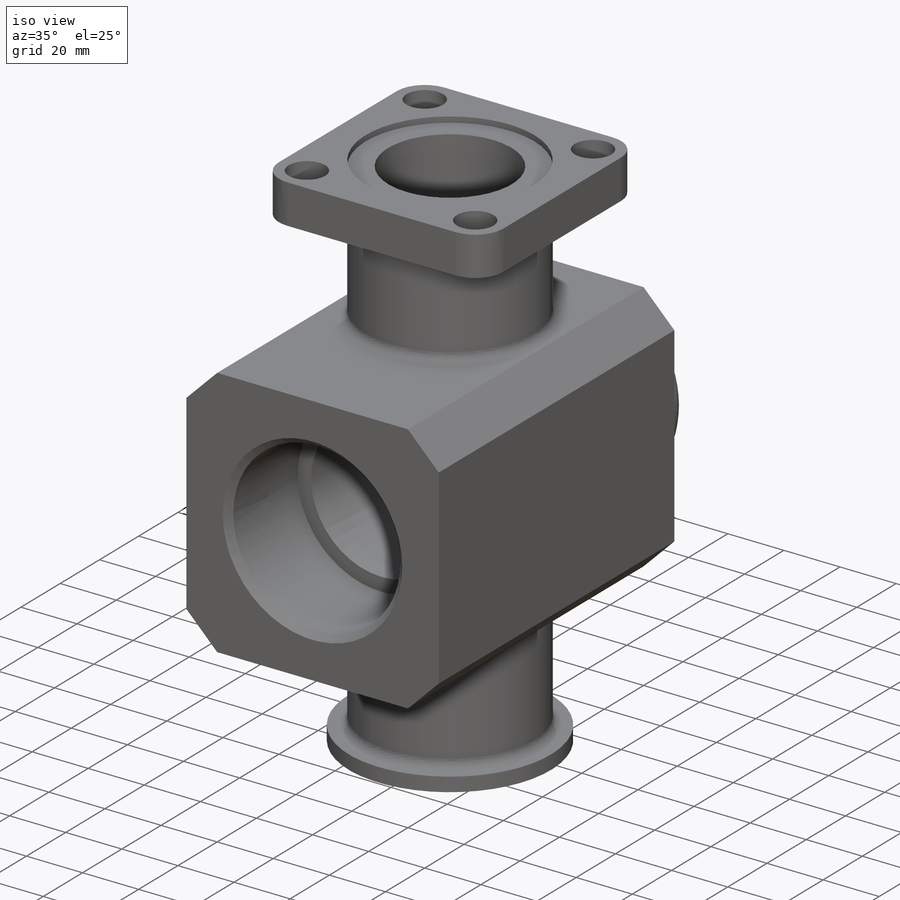
[diagram: iso view]
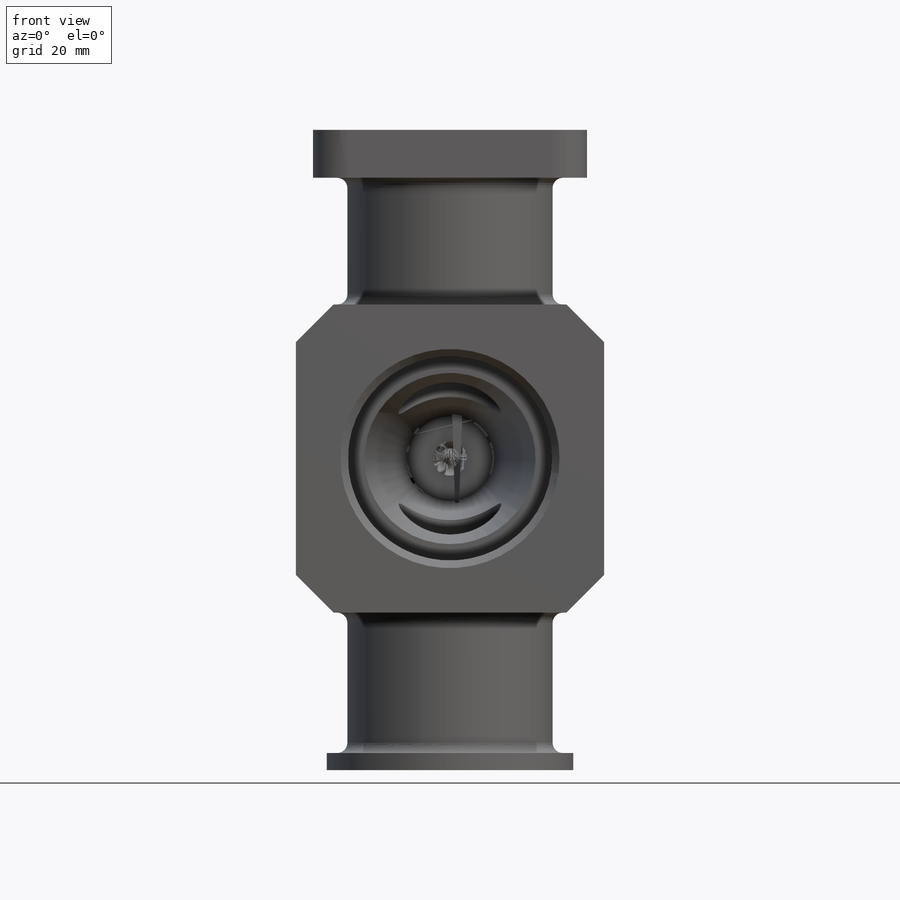
[diagram: front view]
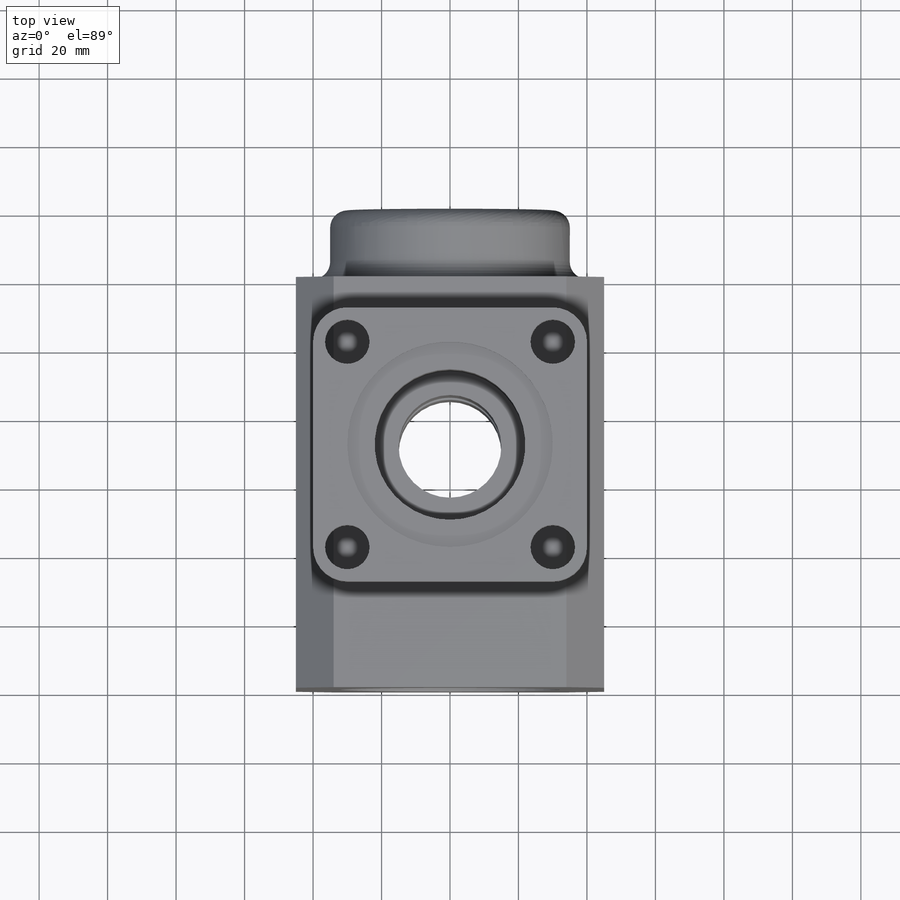
[diagram: top view]
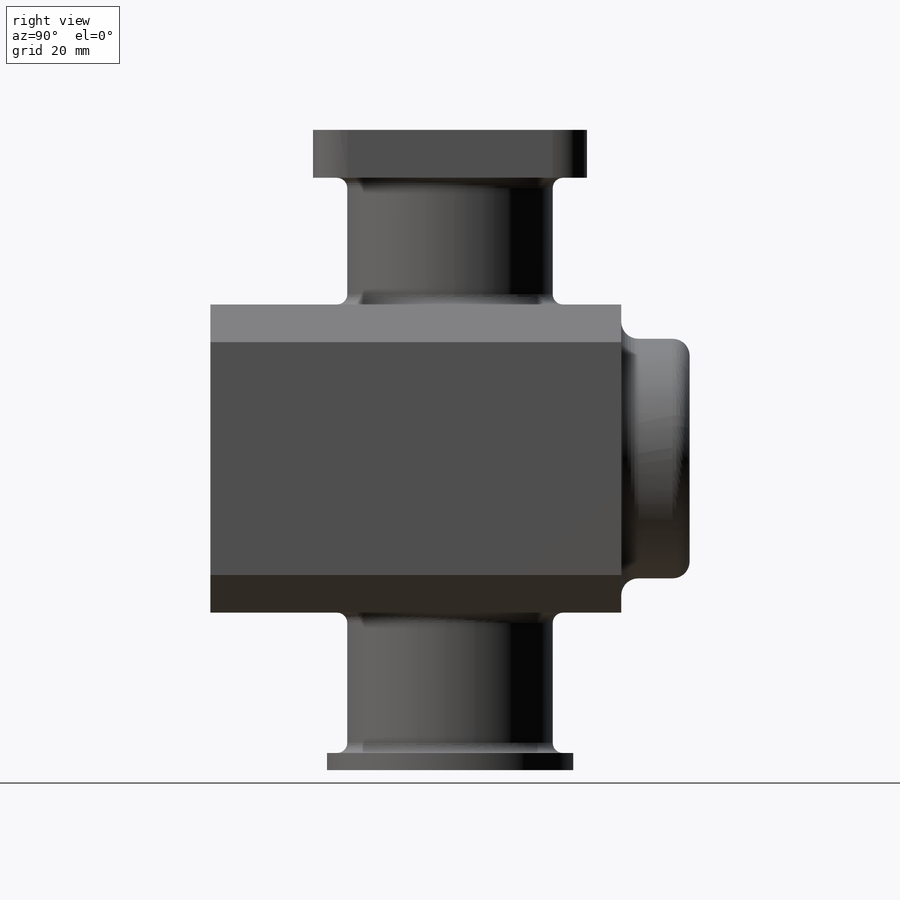
[diagram: right view]
SOLIDWORKS PART (.sldprt)
format: sldprt  version: not decoded by parser v0  size: 675,840 bytes
history: native  units: mm
features: sketch x13, extrude x6, cut_extrude x6, plane x3, fillet x3, chamfer x3, thread x2, material x1, cut_revolve x1 (+9 scaffold rows collapsed)
feature tree (47):
  scaffold x9  (default folders/planes/origin — collapsed)
  material  "Бронза"
  plane  "Спереди"
  plane  "Сверху"
  plane  "Справа"
  sketch  "Эскиз1"  dims[D1=90.0mm]
  extrude  "Бобышка-Вытянуть1"  Depth=120mm
  sketch  "Эскиз9"  dims[D1=70.0mm]
  extrude  "Бобышка-Вытянуть6"  Depth=20mm
  sketch  "Эскиз2"  dims[D1=60.0mm]
  extrude  "Бобышка-Вытянуть2"  Depth=51mm
  sketch  "Эскиз3"  dims[D1=80.0mm]
  extrude  "Бобышка-Вытянуть3"  Depth=14mm
  sketch  "Эскиз4"  dims[D1=60.0mm]
  extrude  "Бобышка-Вытянуть4"  Depth=46mm
  sketch  "Эскиз5"  dims[D1=72.0mm]
  extrude  "Бобышка-Вытянуть5"  Depth=5mm
  sketch  "Эскиз6"  dims[D1=30.0mm]
  cut_extrude  "Вырез-Вытянуть1"  [1 undecoded]
  sketch  "Эскиз7"  dims[D1=44.0mm]
  cut_extrude  "Вырез-Вытянуть2"  Depth=32mm
  sketch  "Эскиз8"  dims[D1=44.704mm]
  cut_extrude  "Вырез-Вытянуть3"  [1 undecoded]
  thread  "Условное изображение резьбы2"  Diameter=28mm  [1 undecoded]
  fillet  "Скругление1"  Radius=10mm
  sketch  "Эскиз10"  dims[D2=13.0mm D1=60.0mm]
  cut_extrude  "Вырез-Вытянуть4"  [1 undecoded]
  chamfer  "Фаска1"  Distance=11mm Angle=45deg
  fillet  "Скругление2"  Radius=5mm
  sketch  "Эскиз11"  dims[D1=59.61mm]
  cut_extrude  "Вырез-Вытянуть5"  [1 undecoded]
  thread  "Условное изображение резьбы1"  Diameter=20mm  [1 undecoded]
  sketch  "Эскиз13"  dims[c1.D1=50.0mm c1.D2=90.0mm c1.D3=90.0mm c2.D3=8.0deg]
  cut_revolve  "Вырез-Повернуть1"  Angle=360deg
  chamfer  "Фаска2"  Distance=2.195mm Angle=45deg
  sketch  "Эскиз14"  dims[D1=60.0mm]
  cut_extrude  "Вырез-Вытянуть6"  Depth=2mm
  fillet  "Скругление3"  Radius=3mm
  chamfer  "Фаска4"  Distance=1.648mm Angle=45deg
decode coverage: 30 of 34 modeling features carry decoded parameters
note: 6 parameter values undecoded
summary: no parameter record found for 4 features
note: suppression state not decoded; provenance and decode notes live in map.json
